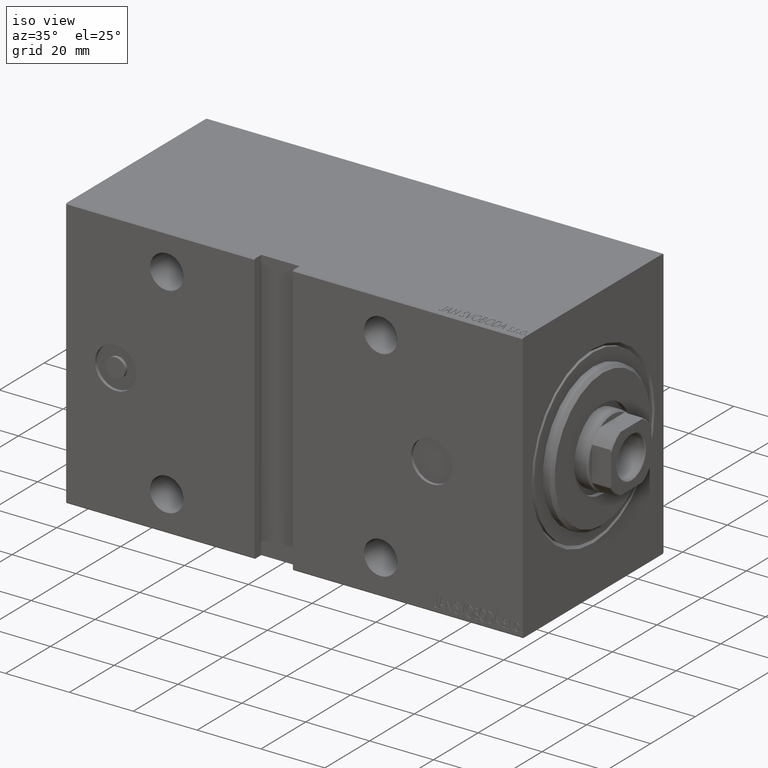
[diagram: clean part render]
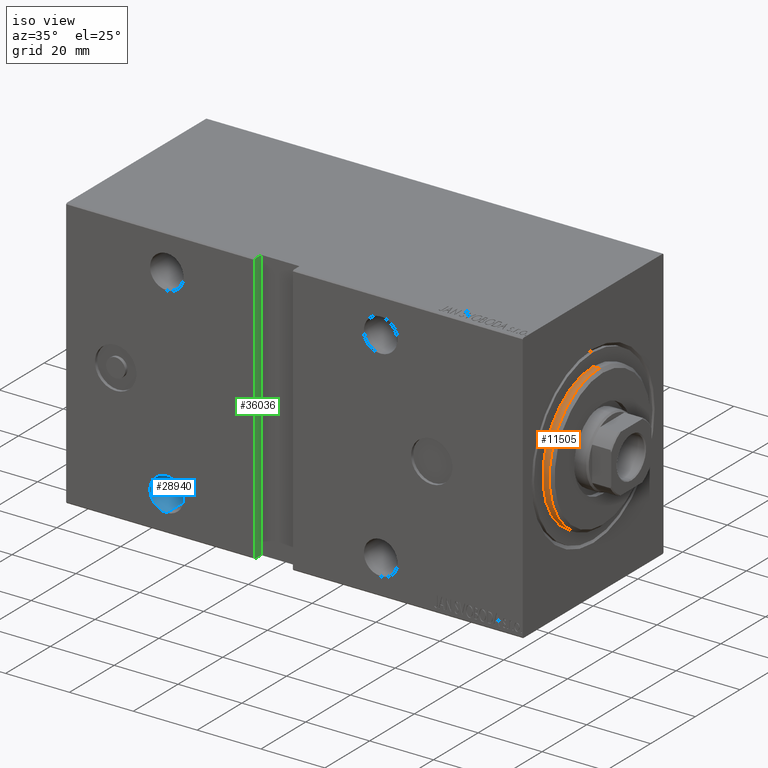
[diagram: same view with three faces highlighted in distinct colors, each labeled with its STEP entity id]
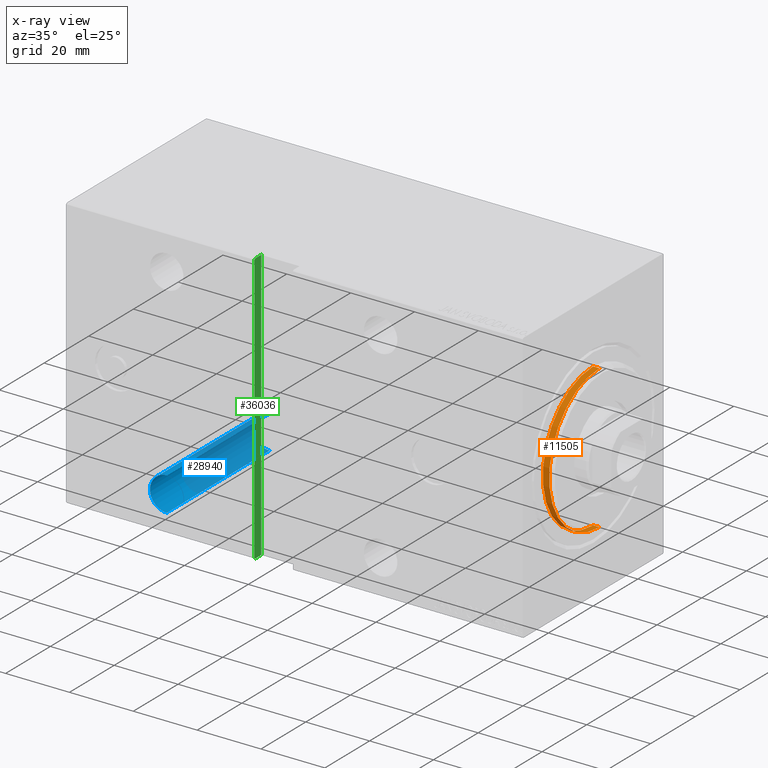
[diagram: x-ray of the same camera — body ghosted, the three highlighted faces saturated]
A machine part, iso view with three faces highlighted in distinct colors.
The next image is the same camera in x-ray (body ghosted, the three faces saturated) — at least one of them is partly hidden behind the body in this view.
Their STEP definitions:

[orange] entity #11505 — the highlighted cylindrical surface (partial cylindrical patch) has radius 22.5 mm, axis along (-1, -0, -0).
#503 = CARTESIAN_POINT ( 'NONE',  ( 2.000000000000006217, 0.000000000000000000, 0.000000000000000000 ) ) ;
#826 = CARTESIAN_POINT ( 'NONE',  ( 3.000000000000000000, 0.000000000000000000, 22.50000000000000355 ) ) ;
#5065 = CARTESIAN_POINT ( 'NONE',  ( 0.000000000000000000, 2.755455298081545172E-15, -22.50000000000000355 ) ) ;
#6247 = CIRCLE ( 'NONE', #35309, 22.50000000000000355 ) ;
#6416 = ORIENTED_EDGE ( 'NONE', *, *, #40891, .T. ) ;
#7507 = CARTESIAN_POINT ( 'NONE',  ( 2.000000000000006217, 2.755455298081545172E-15, -22.50000000000000355 ) ) ;
#8940 = CARTESIAN_POINT ( 'NONE',  ( 2.000000000000006217, 0.000000000000000000, 22.50000000000000355 ) ) ;
#9020 = ORIENTED_EDGE ( 'NONE', *, *, #32661, .T. ) ;
#9274 = VERTEX_POINT ( 'NONE', #21890 ) ;
#11505 = ADVANCED_FACE ( 'NONE', ( #41247 ), #12163, .T. ) ;
#12163 = CYLINDRICAL_SURFACE ( 'NONE', #31448, 22.50000000000000355 ) ;
#13248 = CIRCLE ( 'NONE', #16715, 22.50000000000000355 ) ;
#14063 = VECTOR ( 'NONE', #18591, 1000.000000000000000 ) ;
#14073 = EDGE_CURVE ( 'NONE', #27282, #20135, #6247, .T. ) ;
#14254 = VERTEX_POINT ( 'NONE', #5065 ) ;
#15511 = ORIENTED_EDGE ( 'NONE', *, *, #14073, .T. ) ;
#16715 = AXIS2_PLACEMENT_3D ( 'NONE', #17997, #31217, #27554 ) ;
#17953 = CARTESIAN_POINT ( 'NONE',  ( 3.000000000000000000, 2.755455298081545172E-15, -22.50000000000000355 ) ) ;
#17997 = CARTESIAN_POINT ( 'NONE',  ( 0.000000000000000000, 0.000000000000000000, 0.000000000000000000 ) ) ;
#18591 = DIRECTION ( 'NONE',  ( -1.000000000000000000, -0.000000000000000000, -0.000000000000000000 ) ) ;
#18983 = ORIENTED_EDGE ( 'NONE', *, *, #37411, .F. ) ;
#20135 = VERTEX_POINT ( 'NONE', #8940 ) ;
#21890 = CARTESIAN_POINT ( 'NONE',  ( 0.000000000000000000, 0.000000000000000000, 22.50000000000000355 ) ) ;
#21934 = DIRECTION ( 'NONE',  ( 0.000000000000000000, 0.000000000000000000, 1.000000000000000000 ) ) ;
#22491 = VECTOR ( 'NONE', #34020, 1000.000000000000000 ) ;
#24128 = DIRECTION ( 'NONE',  ( -1.000000000000000000, 0.000000000000000000, 0.000000000000000000 ) ) ;
#27282 = VERTEX_POINT ( 'NONE', #7507 ) ;
#27554 = DIRECTION ( 'NONE',  ( 0.000000000000000000, 0.000000000000000000, -1.000000000000000000 ) ) ;
#28776 = LINE ( 'NONE', #17953, #14063 ) ;
#30542 = LINE ( 'NONE', #826, #22491 ) ;
#31217 = DIRECTION ( 'NONE',  ( 1.000000000000000000, -0.000000000000000000, 0.000000000000000000 ) ) ;
#31448 = AXIS2_PLACEMENT_3D ( 'NONE', #34958, #31477, #21934 ) ;
#31477 = DIRECTION ( 'NONE',  ( -1.000000000000000000, -0.000000000000000000, -0.000000000000000000 ) ) ;
#32661 = EDGE_CURVE ( 'NONE', #9274, #14254, #13248, .T. ) ;
#34020 = DIRECTION ( 'NONE',  ( -1.000000000000000000, -0.000000000000000000, -0.000000000000000000 ) ) ;
#34958 = CARTESIAN_POINT ( 'NONE',  ( 3.000000000000000000, 0.000000000000000000, 0.000000000000000000 ) ) ;
#35309 = AXIS2_PLACEMENT_3D ( 'NONE', #503, #24128, #37150 ) ;
#37150 = DIRECTION ( 'NONE',  ( 0.000000000000000000, 0.000000000000000000, -1.000000000000000000 ) ) ;
#37411 = EDGE_CURVE ( 'NONE', #27282, #14254, #28776, .T. ) ;
#37484 = EDGE_LOOP ( 'NONE', ( #18983, #15511, #6416, #9020 ) ) ;
#40891 = EDGE_CURVE ( 'NONE', #20135, #9274, #30542, .T. ) ;
#41247 = FACE_OUTER_BOUND ( 'NONE', #37484, .T. ) ;

[blue] entity #28940 — the highlighted cylindrical surface (edge-blend (fillet) strip) has radius 5.25 mm, axis along (0, -1, 0).
#920 = DIRECTION ( 'NONE',  ( -0.000000000000000000, 1.000000000000000000, 1.261617073437677752E-16 ) ) ;
#2858 = CARTESIAN_POINT ( 'NONE',  ( 111.5000000000000000, -31.50000000000002842, -26.25000000000000355 ) ) ;
#3082 = CIRCLE ( 'NONE', #41170, 5.250000000000004441 ) ;
#3765 = FACE_OUTER_BOUND ( 'NONE', #37143, .T. ) ;
#4237 = VERTEX_POINT ( 'NONE', #42138 ) ;
#5822 = VECTOR ( 'NONE', #920, 1000.000000000000000 ) ;
#10461 = CARTESIAN_POINT ( 'NONE',  ( 111.5000000000000000, -31.50000000000002842, -31.50000000000000711 ) ) ;
#11056 = EDGE_CURVE ( 'NONE', #14756, #17787, #19323, .T. ) ;
#13079 = ORIENTED_EDGE ( 'NONE', *, *, #27795, .F. ) ;
#13145 = DIRECTION ( 'NONE',  ( 0.000000000000000000, 0.000000000000000000, -1.000000000000000000 ) ) ;
#13483 = ORIENTED_EDGE ( 'NONE', *, *, #40304, .F. ) ;
#13730 = CYLINDRICAL_SURFACE ( 'NONE', #34964, 5.250000000000004441 ) ;
#14450 = ORIENTED_EDGE ( 'NONE', *, *, #11056, .T. ) ;
#14665 = CARTESIAN_POINT ( 'NONE',  ( 111.5000000000000000, -14.49999999999999289, -36.75000000000001421 ) ) ;
#14756 = VERTEX_POINT ( 'NONE', #28625 ) ;
#16227 = VECTOR ( 'NONE', #39287, 1000.000000000000000 ) ;
#17787 = VERTEX_POINT ( 'NONE', #22666 ) ;
#18036 = CARTESIAN_POINT ( 'NONE',  ( 111.5000000000000000, -31.50000000000002842, -36.75000000000001421 ) ) ;
#19323 = LINE ( 'NONE', #2858, #16227 ) ;
#19636 = EDGE_CURVE ( 'NONE', #4237, #17787, #3082, .T. ) ;
#22497 = CARTESIAN_POINT ( 'NONE',  ( 111.5000000000000000, 31.50000000000001421, -31.50000000000000000 ) ) ;
#22666 = CARTESIAN_POINT ( 'NONE',  ( 111.5000000000000000, 31.50000000000001421, -26.24999999999999645 ) ) ;
#23693 = DIRECTION ( 'NONE',  ( 0.000000000000000000, 0.000000000000000000, 1.000000000000000000 ) ) ;
#23966 = VERTEX_POINT ( 'NONE', #14665 ) ;
#26521 = DIRECTION ( 'NONE',  ( -0.000000000000000000, 1.000000000000000000, 1.261617073437677752E-16 ) ) ;
#26644 = CIRCLE ( 'NONE', #28730, 5.250000000000004441 ) ;
#27795 = EDGE_CURVE ( 'NONE', #23966, #4237, #40815, .T. ) ;
#28625 = CARTESIAN_POINT ( 'NONE',  ( 111.5000000000000000, -14.49999999999999289, -26.25000000000000355 ) ) ;
#28730 = AXIS2_PLACEMENT_3D ( 'NONE', #33754, #30278, #13145 ) ;
#28940 = ADVANCED_FACE ( 'NONE', ( #3765 ), #13730, .F. ) ;
#30278 = DIRECTION ( 'NONE',  ( -0.000000000000000000, 1.000000000000000000, -0.000000000000000000 ) ) ;
#33322 = ORIENTED_EDGE ( 'NONE', *, *, #19636, .F. ) ;
#33754 = CARTESIAN_POINT ( 'NONE',  ( 111.5000000000000000, -14.49999999999999289, -31.50000000000000711 ) ) ;
#34964 = AXIS2_PLACEMENT_3D ( 'NONE', #10461, #26521, #23693 ) ;
#37143 = EDGE_LOOP ( 'NONE', ( #13079, #13483, #14450, #33322 ) ) ;
#38966 = DIRECTION ( 'NONE',  ( 0.000000000000000000, 0.000000000000000000, -1.000000000000000000 ) ) ;
#39287 = DIRECTION ( 'NONE',  ( -0.000000000000000000, 1.000000000000000000, 1.261617073437677752E-16 ) ) ;
#40304 = EDGE_CURVE ( 'NONE', #14756, #23966, #26644, .T. ) ;
#40815 = LINE ( 'NONE', #18036, #5822 ) ;
#41170 = AXIS2_PLACEMENT_3D ( 'NONE', #22497, #42446, #38966 ) ;
#42138 = CARTESIAN_POINT ( 'NONE',  ( 111.5000000000000000, 31.50000000000001421, -36.75000000000000711 ) ) ;
#42446 = DIRECTION ( 'NONE',  ( 0.000000000000000000, -1.000000000000000000, -1.632680918566406300E-16 ) ) ;

[green] entity #36036 — the highlighted planar face has unit normal (-1, -0, -0).
#33 = ORIENTED_EDGE ( 'NONE', *, *, #37473, .T. ) ;
#258 = CARTESIAN_POINT ( 'NONE',  ( 84.00000000000001421, 31.50000000000000000, 42.20000000000005258 ) ) ;
#304 = VERTEX_POINT ( 'NONE', #1349 ) ;
#391 = CARTESIAN_POINT ( 'NONE',  ( 83.99999999999998579, 28.50000000000001421, -42.49999999999989342 ) ) ;
#939 = DIRECTION ( 'NONE',  ( 1.000000000000000000, 4.119636244678584335E-32, -3.265361837132817531E-16 ) ) ;
#1349 = CARTESIAN_POINT ( 'NONE',  ( 84.00000000000001421, 28.50000000000001066, -42.50000000000000711 ) ) ;
#2774 = LINE ( 'NONE', #36167, #33568 ) ;
#3182 = LINE ( 'NONE', #16398, #22479 ) ;
#3358 = VERTEX_POINT ( 'NONE', #9997 ) ;
#4496 = EDGE_LOOP ( 'NONE', ( #37618, #35073, #16080, #10914, #21933, #33 ) ) ;
#4523 = EDGE_CURVE ( 'NONE', #17339, #3358, #12590, .T. ) ;
#5169 = CARTESIAN_POINT ( 'NONE',  ( 84.00000000000001421, 31.20000000000002416, 42.50000000000000711 ) ) ;
#6105 = LINE ( 'NONE', #6536, #26668 ) ;
#6317 = DIRECTION ( 'NONE',  ( -0.000000000000000000, 1.000000000000000000, 1.261617073437677752E-16 ) ) ;
#6461 = DIRECTION ( 'NONE',  ( -3.265361837132817531E-16, 1.632680918566408765E-16, -1.000000000000000000 ) ) ;
#6536 = CARTESIAN_POINT ( 'NONE',  ( 84.00000000000001421, 28.50000000000000000, 42.50000000000000000 ) ) ;
#7439 = FACE_OUTER_BOUND ( 'NONE', #4496, .T. ) ;
#9997 = CARTESIAN_POINT ( 'NONE',  ( 83.99999999999998579, 31.50000000000001421, -42.19999999999998863 ) ) ;
#10462 = CARTESIAN_POINT ( 'NONE',  ( 84.00000000000001421, 28.50000000000000000, 42.50000000000000000 ) ) ;
#10914 = ORIENTED_EDGE ( 'NONE', *, *, #20720, .F. ) ;
#11104 = CARTESIAN_POINT ( 'NONE',  ( 83.99999999999998579, 28.50000000000001421, -42.49999999999989342 ) ) ;
#12590 = LINE ( 'NONE', #13466, #41283 ) ;
#13466 = CARTESIAN_POINT ( 'NONE',  ( 83.99999999999998579, 31.50000000000001421, -42.49999999999989342 ) ) ;
#14581 = DIRECTION ( 'NONE',  ( -3.265361837132817531E-16, 0.000000000000000000, -1.000000000000000000 ) ) ;
#15976 = EDGE_CURVE ( 'NONE', #304, #33178, #17499, .T. ) ;
#16080 = ORIENTED_EDGE ( 'NONE', *, *, #15976, .F. ) ;
#16303 = DIRECTION ( 'NONE',  ( -3.265361837132817531E-16, 1.632680918566408765E-16, -1.000000000000000000 ) ) ;
#16398 = CARTESIAN_POINT ( 'NONE',  ( 83.99999999999998579, 31.50000000000002132, -42.19999999999998153 ) ) ;
#16835 = VECTOR ( 'NONE', #18393, 1000.000000000000114 ) ;
#17339 = VERTEX_POINT ( 'NONE', #258 ) ;
#17499 = LINE ( 'NONE', #391, #33961 ) ;
#18393 = DIRECTION ( 'NONE',  ( -2.308959498064351333E-16, 0.7071067811865556774, -0.7071067811865392461 ) ) ;
#20720 = EDGE_CURVE ( 'NONE', #39471, #304, #2774, .T. ) ;
#20939 = AXIS2_PLACEMENT_3D ( 'NONE', #11104, #939, #14581 ) ;
#21933 = ORIENTED_EDGE ( 'NONE', *, *, #41450, .T. ) ;
#22479 = VECTOR ( 'NONE', #23110, 1000.000000000000000 ) ;
#23110 = DIRECTION ( 'NONE',  ( -2.308959498064457829E-16, -0.7071067811865230368, -0.7071067811865721087 ) ) ;
#26668 = VECTOR ( 'NONE', #6317, 1000.000000000000000 ) ;
#27924 = LINE ( 'NONE', #5169, #16835 ) ;
#28636 = EDGE_CURVE ( 'NONE', #3358, #33178, #3182, .T. ) ;
#29512 = CARTESIAN_POINT ( 'NONE',  ( 83.99999999999998579, 31.20000000000001350, -42.49999999999989342 ) ) ;
#29869 = DIRECTION ( 'NONE',  ( -0.000000000000000000, 1.000000000000000000, 1.261617073437677752E-16 ) ) ;
#30332 = VERTEX_POINT ( 'NONE', #35986 ) ;
#33178 = VERTEX_POINT ( 'NONE', #29512 ) ;
#33568 = VECTOR ( 'NONE', #6461, 1000.000000000000000 ) ;
#33961 = VECTOR ( 'NONE', #29869, 1000.000000000000000 ) ;
#35073 = ORIENTED_EDGE ( 'NONE', *, *, #28636, .T. ) ;
#35986 = CARTESIAN_POINT ( 'NONE',  ( 84.00000000000001421, 31.20000000000003482, 42.50000000000000000 ) ) ;
#36036 = ADVANCED_FACE ( 'NONE', ( #7439 ), #40828, .F. ) ;
#36167 = CARTESIAN_POINT ( 'NONE',  ( 83.99999999999998579, 28.50000000000001421, -42.49999999999989342 ) ) ;
#37473 = EDGE_CURVE ( 'NONE', #30332, #17339, #27924, .T. ) ;
#37618 = ORIENTED_EDGE ( 'NONE', *, *, #4523, .T. ) ;
#39471 = VERTEX_POINT ( 'NONE', #10462 ) ;
#40828 = PLANE ( 'NONE',  #20939 ) ;
#41283 = VECTOR ( 'NONE', #16303, 1000.000000000000000 ) ;
#41450 = EDGE_CURVE ( 'NONE', #39471, #30332, #6105, .T. ) ;